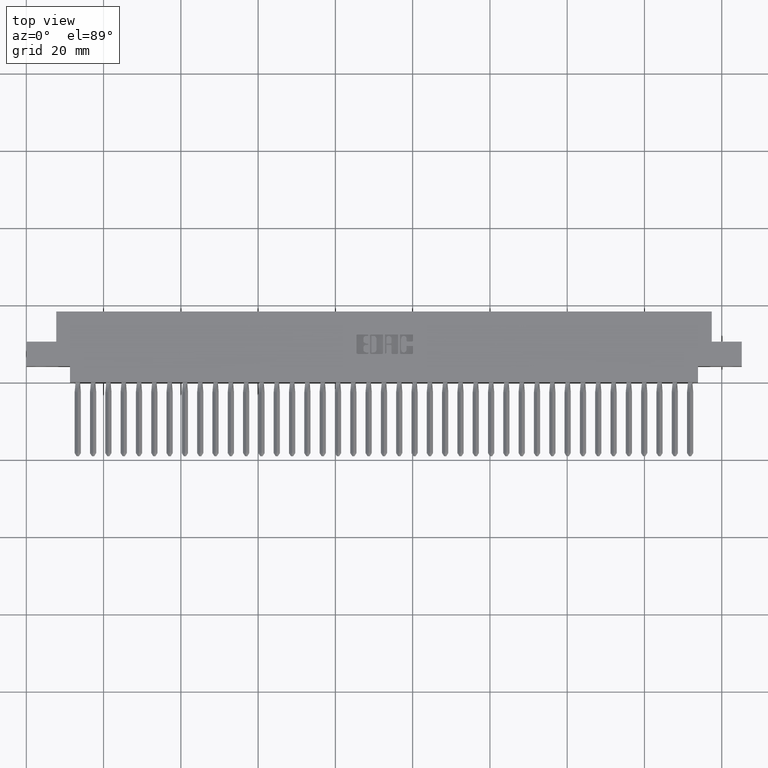
[diagram: clean part render]
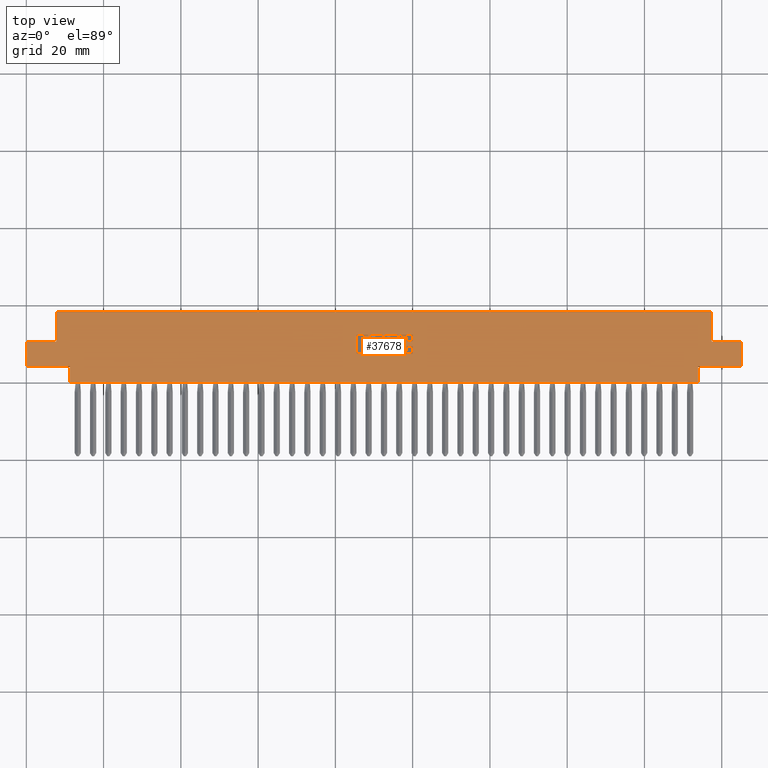
[diagram: same view with one face highlighted and labeled with its STEP entity id]
A machine part, top view. The second image highlights one B-rep face of the part: STEP entity #37678.
In plain terms, the highlighted planar face has unit normal (0, 0, -1).
Its self-contained STEP definition (entity closure, byte-faithful):
#184 = EDGE_CURVE ( 'NONE', #34541, #15889, #6531, .T. ) ;
#190 = CARTESIAN_POINT ( 'NONE',  ( 0.0000000000000000000, 0.4129999999999999200, 0.0000000000000000000 ) ) ;
#207 = ORIENTED_EDGE ( 'NONE', *, *, #20913, .F. ) ;
#329 = DIRECTION ( 'NONE',  ( -0.0000000000000000000, 0.0000000000000000000, 1.000000000000000000 ) ) ;
#342 = CARTESIAN_POINT ( 'NONE',  ( 3.816038053301265000, 0.2868432979619833200, 0.0000000000000000000 ) ) ;
#351 = CARTESIAN_POINT ( 'NONE',  ( 0.0000000000000000000, 0.3663502266127576800, 0.0000000000000000000 ) ) ;
#377 = CARTESIAN_POINT ( 'NONE',  ( 0.0000000000000000000, 0.7199999999999999700, 0.0000000000000000000 ) ) ;
#459 = CARTESIAN_POINT ( 'NONE',  ( 3.789044960240806500, 0.4733410318342011200, 0.0000000000000000000 ) ) ;
#543 = CARTESIAN_POINT ( 'NONE',  ( 3.464637060005109500, 0.3319953808994904900, 0.0000000000000000000 ) ) ;
#575 = FACE_BOUND ( 'NONE', #36734, .T. ) ;
#606 = DIRECTION ( 'NONE',  ( 1.000000000000000000, 0.0000000000000000000, 0.0000000000000000000 ) ) ;
#792 = AXIS2_PLACEMENT_3D ( 'NONE', #46364, #54588, #27063 ) ;
#867 = EDGE_CURVE ( 'NONE', #40204, #36631, #24422, .T. ) ;
#958 = DIRECTION ( 'NONE',  ( 1.000000000000000000, 0.0000000000000000000, 0.0000000000000000000 ) ) ;
#1097 = EDGE_CURVE ( 'NONE', #21560, #23966, #35841, .T. ) ;
#1276 = ORIENTED_EDGE ( 'NONE', *, *, #18230, .F. ) ;
#1279 = ORIENTED_EDGE ( 'NONE', *, *, #16593, .F. ) ;
#1280 = LINE ( 'NONE', #34866, #2672 ) ;
#1295 = CARTESIAN_POINT ( 'NONE',  ( 3.433226915352909400, 0.0000000000000000000, 0.0000000000000000000 ) ) ;
#1310 = CARTESIAN_POINT ( 'NONE',  ( 0.4450000000000002800, 0.1630000000000000100, -3.443706799202358000E-016 ) ) ;
#1350 = EDGE_CURVE ( 'NONE', #27782, #40429, #4209, .T. ) ;
#1395 = DIRECTION ( 'NONE',  ( -1.000000000000000000, 0.0000000000000000000, 0.0000000000000000000 ) ) ;
#1521 = EDGE_CURVE ( 'NONE', #45065, #56869, #18596, .T. ) ;
#1585 = LINE ( 'NONE', #38707, #18819 ) ;
#1937 = VERTEX_POINT ( 'NONE', #34109 ) ;
#2046 = EDGE_CURVE ( 'NONE', #57993, #15889, #13463, .T. ) ;
#2299 = EDGE_CURVE ( 'NONE', #36389, #54179, #42875, .T. ) ;
#2407 = DIRECTION ( 'NONE',  ( 1.000000000000000000, 0.0000000000000000000, 0.0000000000000000000 ) ) ;
#2530 = DIRECTION ( 'NONE',  ( -0.0000000000000000000, 0.0000000000000000000, 1.000000000000000000 ) ) ;
#2584 = CARTESIAN_POINT ( 'NONE',  ( 3.710028815100187700, 0.3683133606535529100, 0.0000000000000000000 ) ) ;
#2672 = VECTOR ( 'NONE', #30242, 39.37007874015748100 ) ;
#2699 = EDGE_LOOP ( 'NONE', ( #8608, #52555, #18664, #28106, #35366, #8772, #3643, #47861, #27826, #45081, #57575, #32491, #40929, #38180, #26944, #54102, #56346, #1276, #25100, #41834, #14329 ) ) ;
#2862 = LINE ( 'NONE', #19035, #14394 ) ;
#3043 = DIRECTION ( 'NONE',  ( 1.000000000000000000, 0.0000000000000000000, 0.0000000000000000000 ) ) ;
#3142 = ORIENTED_EDGE ( 'NONE', *, *, #43409, .F. ) ;
#3157 = CARTESIAN_POINT ( 'NONE',  ( 3.667330649713647100, 0.0000000000000000000, 0.0000000000000000000 ) ) ;
#3244 = CARTESIAN_POINT ( 'NONE',  ( 3.464637060005125500, 0.4380046191005199100, 0.0000000000000000000 ) ) ;
#3347 = VERTEX_POINT ( 'NONE', #32658 ) ;
#3540 = DIRECTION ( 'NONE',  ( 0.0000000000000000000, -1.000000000000000000, 0.0000000000000000000 ) ) ;
#3562 = DIRECTION ( 'NONE',  ( 1.000000000000000000, 0.0000000000000000000, 0.0000000000000000000 ) ) ;
#3566 = CARTESIAN_POINT ( 'NONE',  ( 3.478133606535351000, 0.4694147637527358300, 0.0000000000000000000 ) ) ;
#3621 = CIRCLE ( 'NONE', #24290, 0.009815670203811809700 ) ;
#3643 = ORIENTED_EDGE ( 'NONE', *, *, #30520, .F. ) ;
#3658 = DIRECTION ( 'NONE',  ( -0.0000000000000000000, 0.0000000000000000000, 1.000000000000000000 ) ) ;
#3659 = ORIENTED_EDGE ( 'NONE', *, *, #2299, .T. ) ;
#3729 = CARTESIAN_POINT ( 'NONE',  ( 3.816038053301265000, 0.2966589681657900700, 0.0000000000000000000 ) ) ;
#3816 = CARTESIAN_POINT ( 'NONE',  ( 3.931862961706166900, 0.4139562271012335900, 0.0000000000000000000 ) ) ;
#3934 = DIRECTION ( 'NONE',  ( 0.0000000000000000000, 0.0000000000000000000, -1.000000000000000000 ) ) ;
#3960 = DIRECTION ( 'NONE',  ( 1.000000000000000000, 0.0000000000000000000, 0.0000000000000000000 ) ) ;
#4149 = CARTESIAN_POINT ( 'NONE',  ( 3.667330649713647100, 0.3683133606535457000, 0.0000000000000000000 ) ) ;
#4160 = DIRECTION ( 'NONE',  ( 1.000000000000000000, 0.0000000000000000000, 0.0000000000000000000 ) ) ;
#4165 = ORIENTED_EDGE ( 'NONE', *, *, #34953, .F. ) ;
#4209 = LINE ( 'NONE', #14595, #49555 ) ;
#4273 = CARTESIAN_POINT ( 'NONE',  ( 3.710028815100187700, 0.3781290308573499500, 0.0000000000000000000 ) ) ;
#4296 = CARTESIAN_POINT ( 'NONE',  ( 3.819964321382818300, 0.0000000000000000000, 0.0000000000000000000 ) ) ;
#4310 = VECTOR ( 'NONE', #16912, 39.37007874015748100 ) ;
#4472 = CIRCLE ( 'NONE', #10519, 0.006870969142657995000 ) ;
#4549 = EDGE_CURVE ( 'NONE', #9058, #21959, #40479, .T. ) ;
#4750 = AXIS2_PLACEMENT_3D ( 'NONE', #4771, #58067, #958 ) ;
#4771 = CARTESIAN_POINT ( 'NONE',  ( 3.373842110619937900, 0.4733410318342102200, 0.0000000000000000000 ) ) ;
#4845 = CARTESIAN_POINT ( 'NONE',  ( 3.500955039759169100, 0.0000000000000000000, 0.0000000000000000000 ) ) ;
#4848 = CARTESIAN_POINT ( 'NONE',  ( 2.731847993664263200E-016, 0.1630000000000000100, 3.951581205970576600E-015 ) ) ;
#4956 = AXIS2_PLACEMENT_3D ( 'NONE', #17326, #26956, #26369 ) ;
#4999 = DIRECTION ( 'NONE',  ( -0.0000000000000000000, 0.0000000000000000000, 1.000000000000000000 ) ) ;
#5034 = DIRECTION ( 'NONE',  ( 1.000000000000000000, 0.0000000000000000000, 0.0000000000000000000 ) ) ;
#5077 = DIRECTION ( 'NONE',  ( -1.000000000000000000, -0.0000000000000000000, 9.653824462675984600E-015 ) ) ;
#5101 = CIRCLE ( 'NONE', #34636, 0.006870969142663458500 ) ;
#5257 = VERTEX_POINT ( 'NONE', #32251 ) ;
#5364 = EDGE_CURVE ( 'NONE', #23966, #56557, #36007, .T. ) ;
#5383 = DIRECTION ( 'NONE',  ( 1.000000000000000000, 0.0000000000000000000, 0.0000000000000000000 ) ) ;
#5607 = DIRECTION ( 'NONE',  ( -0.0000000000000000000, 0.0000000000000000000, 1.000000000000000000 ) ) ;
#5656 = EDGE_CURVE ( 'NONE', #47875, #32740, #3621, .T. ) ;
#5693 = EDGE_CURVE ( 'NONE', #19999, #57878, #5101, .T. ) ;
#5733 = DIRECTION ( 'NONE',  ( -0.0000000000000000000, 0.0000000000000000000, 1.000000000000000000 ) ) ;
#5885 = CARTESIAN_POINT ( 'NONE',  ( 3.433226915352927600, 0.3467188862052006900, 0.0000000000000000000 ) ) ;
#5907 = CIRCLE ( 'NONE', #29720, 0.009815670203806345400 ) ;
#5979 = VERTEX_POINT ( 'NONE', #31999 ) ;
#6126 = DIRECTION ( 'NONE',  ( 1.000000000000000000, 0.0000000000000000000, 0.0000000000000000000 ) ) ;
#6180 = CIRCLE ( 'NONE', #792, 0.009815670203805252500 ) ;
#6240 = AXIS2_PLACEMENT_3D ( 'NONE', #45362, #9002, #4160 ) ;
#6320 = VECTOR ( 'NONE', #33329, 39.37007874015748100 ) ;
#6329 = VECTOR ( 'NONE', #54827, 39.37007874015748100 ) ;
#6531 = LINE ( 'NONE', #34174, #44637 ) ;
#6733 = EDGE_CURVE ( 'NONE', #21752, #23441, #23652, .T. ) ;
#6739 = DIRECTION ( 'NONE',  ( -1.000000000000000000, 0.0000000000000000000, 0.0000000000000000000 ) ) ;
#6764 = DIRECTION ( 'NONE',  ( 1.000000000000000000, 0.0000000000000000000, 0.0000000000000000000 ) ) ;
#6766 = VERTEX_POINT ( 'NONE', #58082 ) ;
#6878 = EDGE_CURVE ( 'NONE', #27490, #57993, #30024, .T. ) ;
#6977 = DIRECTION ( 'NONE',  ( 1.000000000000000000, 0.0000000000000000000, 0.0000000000000000000 ) ) ;
#7044 = CARTESIAN_POINT ( 'NONE',  ( 3.433226915352909400, 0.4232811137948585000, 0.0000000000000000000 ) ) ;
#7239 = AXIS2_PLACEMENT_3D ( 'NONE', #3729, #12607, #6977 ) ;
#7254 = VERTEX_POINT ( 'NONE', #24044 ) ;
#7451 = DIRECTION ( 'NONE',  ( 1.000000000000000000, 0.0000000000000000000, 0.0000000000000000000 ) ) ;
#7616 = DIRECTION ( 'NONE',  ( -0.0000000000000000000, 0.0000000000000000000, 1.000000000000000000 ) ) ;
#7811 = CIRCLE ( 'NONE', #50962, 0.009815670203841313900 ) ;
#7842 = LINE ( 'NONE', #57706, #20751 ) ;
#7939 = VERTEX_POINT ( 'NONE', #3566 ) ;
#8020 = VECTOR ( 'NONE', #16630, 39.37007874015748100 ) ;
#8041 = CARTESIAN_POINT ( 'NONE',  ( 3.872478156973179000, 0.3268421540424530900, 0.0000000000000000000 ) ) ;
#8128 = EDGE_CURVE ( 'NONE', #27921, #36009, #39975, .T. ) ;
#8508 = CIRCLE ( 'NONE', #14814, 0.009815670203841313900 ) ;
#8579 = CIRCLE ( 'NONE', #15486, 0.006870969142648706400 ) ;
#8608 = ORIENTED_EDGE ( 'NONE', *, *, #1521, .T. ) ;
#8684 = CIRCLE ( 'NONE', #42504, 0.009815670203805798900 ) ;
#8734 = EDGE_CURVE ( 'NONE', #5257, #57224, #40612, .T. ) ;
#8772 = ORIENTED_EDGE ( 'NONE', *, *, #5693, .F. ) ;
#8849 = CARTESIAN_POINT ( 'NONE',  ( 6.844999999999999800, 0.1630000000000000100, 0.0000000000000000000 ) ) ;
#8908 = ORIENTED_EDGE ( 'NONE', *, *, #8128, .F. ) ;
#8976 = LINE ( 'NONE', #4845, #36990 ) ;
#8978 = VERTEX_POINT ( 'NONE', #24978 ) ;
#9002 = DIRECTION ( 'NONE',  ( -0.0000000000000000000, 0.0000000000000000000, 1.000000000000000000 ) ) ;
#9058 = VERTEX_POINT ( 'NONE', #39229 ) ;
#9207 = VERTEX_POINT ( 'NONE', #27135 ) ;
#9379 = ORIENTED_EDGE ( 'NONE', *, *, #36669, .F. ) ;
#9492 = CARTESIAN_POINT ( 'NONE',  ( 3.872478156973179000, 0.3565345564089688100, 0.0000000000000000000 ) ) ;
#9611 = ORIENTED_EDGE ( 'NONE', *, *, #184, .F. ) ;
#9613 = CIRCLE ( 'NONE', #22404, 0.006870969142648706400 ) ;
#9902 = DIRECTION ( 'NONE',  ( 1.000000000000000000, 0.0000000000000000000, 0.0000000000000000000 ) ) ;
#10111 = LINE ( 'NONE', #38695, #48194 ) ;
#10209 = ORIENTED_EDGE ( 'NONE', *, *, #45513, .T. ) ;
#10315 = CARTESIAN_POINT ( 'NONE',  ( -0.0000000000000000000, 0.4831567020380067600, 0.0000000000000000000 ) ) ;
#10384 = ORIENTED_EDGE ( 'NONE', *, *, #23600, .T. ) ;
#10519 = AXIS2_PLACEMENT_3D ( 'NONE', #28700, #5607, #33504 ) ;
#10746 = DIRECTION ( 'NONE',  ( -0.0000000000000000000, -1.000000000000000000, -0.0000000000000000000 ) ) ;
#10756 = VERTEX_POINT ( 'NONE', #30302 ) ;
#10901 = CARTESIAN_POINT ( 'NONE',  ( 3.931862961706156200, 0.3663502266127576800, 0.0000000000000000000 ) ) ;
#11077 = AXIS2_PLACEMENT_3D ( 'NONE', #21790, #12976, #25829 ) ;
#11082 = EDGE_CURVE ( 'NONE', #50565, #15315, #21685, .T. ) ;
#11187 = CARTESIAN_POINT ( 'NONE',  ( 3.485004575677973300, 0.3850000000000204900, 0.0000000000000000000 ) ) ;
#11217 = DIRECTION ( 'NONE',  ( 1.000000000000000000, 0.0000000000000000000, 0.0000000000000000000 ) ) ;
#11418 = EDGE_CURVE ( 'NONE', #25159, #29227, #26654, .T. ) ;
#11474 = CARTESIAN_POINT ( 'NONE',  ( 3.478133606535335400, 0.2937142671046481000, 0.0000000000000000000 ) ) ;
#11565 = CARTESIAN_POINT ( 'NONE',  ( 3.636411288571669100, 0.2966589681657900700, 0.0000000000000000000 ) ) ;
#11699 = LINE ( 'NONE', #25732, #44754 ) ;
#11758 = CIRCLE ( 'NONE', #48573, 0.009815670203787221800 ) ;
#11855 = EDGE_CURVE ( 'NONE', #21560, #39305, #54618, .T. ) ;
#11907 = LINE ( 'NONE', #19242, #16213 ) ;
#11979 = LINE ( 'NONE', #1295, #21290 ) ;
#12047 = DIRECTION ( 'NONE',  ( 1.000000000000000000, 0.0000000000000000000, 0.0000000000000000000 ) ) ;
#12068 = ORIENTED_EDGE ( 'NONE', *, *, #22790, .F. ) ;
#12133 = FACE_BOUND ( 'NONE', #43295, .T. ) ;
#12249 = EDGE_CURVE ( 'NONE', #36389, #31656, #12897, .T. ) ;
#12267 = CARTESIAN_POINT ( 'NONE',  ( 3.464637060005125500, 0.4694147637527358300, 0.0000000000000000000 ) ) ;
#12293 = DIRECTION ( 'NONE',  ( 1.000000000000000000, 0.0000000000000000000, 0.0000000000000000000 ) ) ;
#12607 = DIRECTION ( 'NONE',  ( -0.0000000000000000000, 0.0000000000000000000, 1.000000000000000000 ) ) ;
#12651 = CARTESIAN_POINT ( 'NONE',  ( 3.667330649713647100, 0.2937142671046481000, 0.0000000000000000000 ) ) ;
#12665 = DIRECTION ( 'NONE',  ( 0.0000000000000000000, 1.000000000000000000, -0.0000000000000000000 ) ) ;
#12683 = EDGE_CURVE ( 'NONE', #39089, #22342, #51669, .T. ) ;
#12750 = DIRECTION ( 'NONE',  ( -0.0000000000000000000, 0.0000000000000000000, 1.000000000000000000 ) ) ;
#12861 = VECTOR ( 'NONE', #5383, 39.37007874015748100 ) ;
#12868 = CARTESIAN_POINT ( 'NONE',  ( 6.844999999999999800, 0.0000000000000000000, 0.0000000000000000000 ) ) ;
#12897 = CIRCLE ( 'NONE', #48765, 0.009815670203795964800 ) ;
#12976 = DIRECTION ( 'NONE',  ( -0.0000000000000000000, 0.0000000000000000000, 1.000000000000000000 ) ) ;
#13096 = CARTESIAN_POINT ( 'NONE',  ( 3.719844485303984700, 0.2966589681657879600, 0.0000000000000000000 ) ) ;
#13152 = EDGE_CURVE ( 'NONE', #28659, #5979, #35741, .T. ) ;
#13422 = ORIENTED_EDGE ( 'NONE', *, *, #8734, .F. ) ;
#13463 = LINE ( 'NONE', #31695, #47954 ) ;
#13495 = CARTESIAN_POINT ( 'NONE',  ( 3.872478156973165700, 0.0000000000000000000, 0.0000000000000000000 ) ) ;
#13682 = CARTESIAN_POINT ( 'NONE',  ( 3.846221239177992000, 0.4431578459575297200, 0.0000000000000000000 ) ) ;
#13756 = EDGE_CURVE ( 'NONE', #39390, #56869, #11979, .T. ) ;
#13830 = DIRECTION ( 'NONE',  ( -0.0000000000000000000, 0.0000000000000000000, 1.000000000000000000 ) ) ;
#13839 = CARTESIAN_POINT ( 'NONE',  ( -0.0000000000000000000, 0.2868432979619833200, 0.0000000000000000000 ) ) ;
#14060 = VERTEX_POINT ( 'NONE', #10901 ) ;
#14155 = VERTEX_POINT ( 'NONE', #3816 ) ;
#14200 = AXIS2_PLACEMENT_3D ( 'NONE', #11474, #15480, #33939 ) ;
#14329 = ORIENTED_EDGE ( 'NONE', *, *, #24579, .F. ) ;
#14394 = VECTOR ( 'NONE', #19644, 39.37007874015748100 ) ;
#14595 = CARTESIAN_POINT ( 'NONE',  ( -0.0000000000000000000, 0.2868432979619833200, 0.0000000000000000000 ) ) ;
#14631 = ORIENTED_EDGE ( 'NONE', *, *, #55944, .F. ) ;
#14814 = AXIS2_PLACEMENT_3D ( 'NONE', #17093, #22101, #12293 ) ;
#15315 = VERTEX_POINT ( 'NONE', #52717 ) ;
#15385 = LINE ( 'NONE', #48221, #49911 ) ;
#15394 = DIRECTION ( 'NONE',  ( 0.0000000000000000000, 1.000000000000000000, -0.0000000000000000000 ) ) ;
#15480 = DIRECTION ( 'NONE',  ( -0.0000000000000000000, 0.0000000000000000000, 1.000000000000000000 ) ) ;
#15486 = AXIS2_PLACEMENT_3D ( 'NONE', #48062, #52490, #20132 ) ;
#15533 = VERTEX_POINT ( 'NONE', #4848 ) ;
#15567 = VECTOR ( 'NONE', #42634, 39.37007874015748100 ) ;
#15766 = EDGE_CURVE ( 'NONE', #36009, #47557, #15385, .T. ) ;
#15889 = VERTEX_POINT ( 'NONE', #12868 ) ;
#16064 = DIRECTION ( 'NONE',  ( 1.000000000000000000, 0.0000000000000000000, 0.0000000000000000000 ) ) ;
#16193 = CARTESIAN_POINT ( 'NONE',  ( 3.478133606535309700, 0.3850000000000204900, 0.0000000000000000000 ) ) ;
#16213 = VECTOR ( 'NONE', #32878, 39.37007874015748100 ) ;
#16293 = CARTESIAN_POINT ( 'NONE',  ( 0.0000000000000000000, 0.4831567020380328500, 0.0000000000000000000 ) ) ;
#16450 = EDGE_CURVE ( 'NONE', #14155, #8978, #6180, .T. ) ;
#16593 = EDGE_CURVE ( 'NONE', #6766, #9207, #11907, .T. ) ;
#16606 = CARTESIAN_POINT ( 'NONE',  ( 3.626595618367861800, 0.2868432979619833200, 0.0000000000000000000 ) ) ;
#16630 = DIRECTION ( 'NONE',  ( 1.000000000000000000, 0.0000000000000000000, 0.0000000000000000000 ) ) ;
#16912 = DIRECTION ( 'NONE',  ( 0.0000000000000000000, 1.000000000000000000, -0.0000000000000000000 ) ) ;
#17093 = CARTESIAN_POINT ( 'NONE',  ( 3.816038053301299600, 0.4733410318342102200, 0.0000000000000000000 ) ) ;
#17287 = CIRCLE ( 'NONE', #57050, 0.03141014465217440600 ) ;
#17326 = CARTESIAN_POINT ( 'NONE',  ( 3.478133606535309700, 0.3850000000000204900, 0.0000000000000000000 ) ) ;
#17388 = ORIENTED_EDGE ( 'NONE', *, *, #45162, .F. ) ;
#17418 = CARTESIAN_POINT ( 'NONE',  ( -0.0000000000000000000, 0.3781290308573569400, 0.0000000000000000000 ) ) ;
#17688 = ORIENTED_EDGE ( 'NONE', *, *, #44374, .F. ) ;
#17769 = EDGE_CURVE ( 'NONE', #10756, #18890, #56329, .T. ) ;
#18114 = DIRECTION ( 'NONE',  ( 0.0000000000000000000, -1.000000000000000000, 0.0000000000000000000 ) ) ;
#18156 = CARTESIAN_POINT ( 'NONE',  ( 3.478133606535335400, 0.2937142671046481000, 0.0000000000000000000 ) ) ;
#18190 = CARTESIAN_POINT ( 'NONE',  ( 0.3050000000000000500, 0.7199999999999999700, 0.0000000000000000000 ) ) ;
#18229 = DIRECTION ( 'NONE',  ( -1.000000000000000000, 0.0000000000000000000, -0.0000000000000000000 ) ) ;
#18230 = EDGE_CURVE ( 'NONE', #3347, #9058, #48339, .T. ) ;
#18339 = EDGE_CURVE ( 'NONE', #32740, #14155, #11699, .T. ) ;
#18496 = EDGE_CURVE ( 'NONE', #39244, #50565, #1585, .T. ) ;
#18540 = VECTOR ( 'NONE', #606, 39.37007874015748100 ) ;
#18544 = ORIENTED_EDGE ( 'NONE', *, *, #18496, .F. ) ;
#18596 = CIRCLE ( 'NONE', #21199, 0.03141014465221592800 ) ;
#18664 = ORIENTED_EDGE ( 'NONE', *, *, #44166, .T. ) ;
#18682 = EDGE_CURVE ( 'NONE', #40429, #23753, #5907, .T. ) ;
#18702 = DIRECTION ( 'NONE',  ( -0.0000000000000000000, 0.0000000000000000000, 1.000000000000000000 ) ) ;
#18819 = VECTOR ( 'NONE', #6739, 39.37007874015748100 ) ;
#18890 = VERTEX_POINT ( 'NONE', #5885 ) ;
#19035 = CARTESIAN_POINT ( 'NONE',  ( 0.0000000000000000000, 0.4831567020380511700, 0.0000000000000000000 ) ) ;
#19096 = CARTESIAN_POINT ( 'NONE',  ( 3.364026440416115100, 0.4733410318342102200, 0.0000000000000000000 ) ) ;
#19205 = VECTOR ( 'NONE', #3540, 39.37007874015748100 ) ;
#19242 = CARTESIAN_POINT ( 'NONE',  ( 3.806222383097458200, 0.0000000000000000000, 0.0000000000000000000 ) ) ;
#19272 = DIRECTION ( 'NONE',  ( -0.0000000000000000000, 0.0000000000000000000, 1.000000000000000000 ) ) ;
#19540 = VECTOR ( 'NONE', #10746, 39.37007874015748100 ) ;
#19617 = ORIENTED_EDGE ( 'NONE', *, *, #15766, .F. ) ;
#19644 = DIRECTION ( 'NONE',  ( -1.000000000000000000, 0.0000000000000000000, 0.0000000000000000000 ) ) ;
#19680 = AXIS2_PLACEMENT_3D ( 'NONE', #39740, #53413, #48794 ) ;
#19898 = CARTESIAN_POINT ( 'NONE',  ( 3.478133606415414500, 0.3005852362473103200, 0.0000000000000000000 ) ) ;
#19999 = VERTEX_POINT ( 'NONE', #37370 ) ;
#20046 = CARTESIAN_POINT ( 'NONE',  ( 3.882293827176977800, 0.4237718973050453300, 0.0000000000000000000 ) ) ;
#20132 = DIRECTION ( 'NONE',  ( 1.000000000000000000, 0.0000000000000000000, 0.0000000000000000000 ) ) ;
#20362 = CARTESIAN_POINT ( 'NONE',  ( 3.626595618367828100, 0.4733410318342101100, 0.0000000000000000000 ) ) ;
#20417 = DIRECTION ( 'NONE',  ( -1.000000000000000000, 0.0000000000000000000, 0.0000000000000000000 ) ) ;
#20548 = DIRECTION ( 'NONE',  ( -0.0000000000000000000, 0.0000000000000000000, 1.000000000000000000 ) ) ;
#20577 = EDGE_CURVE ( 'NONE', #42239, #39244, #7811, .T. ) ;
#20664 = ORIENTED_EDGE ( 'NONE', *, *, #1350, .F. ) ;
#20697 = ORIENTED_EDGE ( 'NONE', *, *, #47452, .T. ) ;
#20751 = VECTOR ( 'NONE', #44392, 39.37007874015748100 ) ;
#20913 = EDGE_CURVE ( 'NONE', #32905, #6766, #8508, .T. ) ;
#21124 = EDGE_CURVE ( 'NONE', #35846, #39305, #53018, .T. ) ;
#21179 = ORIENTED_EDGE ( 'NONE', *, *, #18339, .F. ) ;
#21199 = AXIS2_PLACEMENT_3D ( 'NONE', #3244, #39241, #3043 ) ;
#21290 = VECTOR ( 'NONE', #47509, 39.37007874015748100 ) ;
#21305 = DIRECTION ( 'NONE',  ( 0.0000000000000000000, 1.000000000000000000, -0.0000000000000000000 ) ) ;
#21326 = DIRECTION ( 'NONE',  ( -0.0000000000000000000, 1.000000000000000000, -0.0000000000000000000 ) ) ;
#21434 = FACE_BOUND ( 'NONE', #22991, .T. ) ;
#21443 = VECTOR ( 'NONE', #36290, 39.37007874015748100 ) ;
#21560 = VERTEX_POINT ( 'NONE', #54197 ) ;
#21635 = LINE ( 'NONE', #44798, #57667 ) ;
#21685 = CIRCLE ( 'NONE', #42968, 0.009815670203840767500 ) ;
#21752 = VERTEX_POINT ( 'NONE', #42265 ) ;
#21790 = CARTESIAN_POINT ( 'NONE',  ( 3.626595618367861800, 0.2966589681657900700, 0.0000000000000000000 ) ) ;
#21824 = AXIS2_PLACEMENT_3D ( 'NONE', #18156, #22957, #23161 ) ;
#21857 = DIRECTION ( 'NONE',  ( -0.0000000000000000000, 0.0000000000000000000, 1.000000000000000000 ) ) ;
#21941 = ORIENTED_EDGE ( 'NONE', *, *, #16450, .F. ) ;
#21959 = VERTEX_POINT ( 'NONE', #19096 ) ;
#22078 = LINE ( 'NONE', #10315, #18540 ) ;
#22101 = DIRECTION ( 'NONE',  ( -0.0000000000000000000, 0.0000000000000000000, 1.000000000000000000 ) ) ;
#22143 = VECTOR ( 'NONE', #21305, 39.37007874015748100 ) ;
#22182 = DIRECTION ( 'NONE',  ( -0.0000000000000000000, 0.0000000000000000000, 1.000000000000000000 ) ) ;
#22276 = CARTESIAN_POINT ( 'NONE',  ( 3.510770709962975900, 0.2966589681657900700, 0.0000000000000000000 ) ) ;
#22342 = VERTEX_POINT ( 'NONE', #56007 ) ;
#22404 = AXIS2_PLACEMENT_3D ( 'NONE', #39950, #21857, #3562 ) ;
#22570 = CARTESIAN_POINT ( 'NONE',  ( 3.373842110619918300, 0.2868432979619851000, 0.0000000000000000000 ) ) ;
#22671 = CARTESIAN_POINT ( 'NONE',  ( 3.636411288571669100, 0.0000000000000000000, 0.0000000000000000000 ) ) ;
#22790 = EDGE_CURVE ( 'NONE', #56557, #34541, #58435, .T. ) ;
#22796 = ORIENTED_EDGE ( 'NONE', *, *, #30562, .T. ) ;
#22957 = DIRECTION ( 'NONE',  ( -0.0000000000000000000, 0.0000000000000000000, 1.000000000000000000 ) ) ;
#22991 = EDGE_LOOP ( 'NONE', ( #41409, #47680, #22796, #49525, #3659, #14631, #52990, #24975, #10384, #20697, #24339, #3142, #32800, #42108 ) ) ;
#23077 = EDGE_LOOP ( 'NONE', ( #38282, #27774, #54148, #9611, #12068, #25772, #50127, #31677, #33865, #17388, #9379, #27876 ) ) ;
#23161 = DIRECTION ( 'NONE',  ( 1.000000000000000000, 0.0000000000000000000, 0.0000000000000000000 ) ) ;
#23193 = CARTESIAN_POINT ( 'NONE',  ( 7.290000000000000000, 0.4129999999999999200, 0.0000000000000000000 ) ) ;
#23357 = EDGE_CURVE ( 'NONE', #23753, #33457, #45377, .T. ) ;
#23441 = VERTEX_POINT ( 'NONE', #4273 ) ;
#23590 = CIRCLE ( 'NONE', #19680, 0.009815670203840221000 ) ;
#23600 = EDGE_CURVE ( 'NONE', #23441, #47597, #26027, .T. ) ;
#23652 = CIRCLE ( 'NONE', #23920, 0.009815670203797057700 ) ;
#23753 = VERTEX_POINT ( 'NONE', #26727 ) ;
#23893 = CARTESIAN_POINT ( 'NONE',  ( 7.290000000000000000, 0.1630000000000000100, 0.0000000000000000000 ) ) ;
#23920 = AXIS2_PLACEMENT_3D ( 'NONE', #2584, #7616, #12047 ) ;
#23966 = VERTEX_POINT ( 'NONE', #27668 ) ;
#24044 = CARTESIAN_POINT ( 'NONE',  ( 0.3050000000000000500, 0.4129999999999999200, 0.0000000000000000000 ) ) ;
#24248 = EDGE_CURVE ( 'NONE', #9207, #27782, #54682, .T. ) ;
#24290 = AXIS2_PLACEMENT_3D ( 'NONE', #20046, #52198, #6764 ) ;
#24339 = ORIENTED_EDGE ( 'NONE', *, *, #40394, .T. ) ;
#24361 = FACE_OUTER_BOUND ( 'NONE', #23077, .T. ) ;
#24422 = LINE ( 'NONE', #30419, #40939 ) ;
#24471 = DIRECTION ( 'NONE',  ( 1.000000000000000000, 0.0000000000000000000, 0.0000000000000000000 ) ) ;
#24579 = EDGE_CURVE ( 'NONE', #45065, #7939, #10111, .T. ) ;
#24610 = LINE ( 'NONE', #27950, #56975 ) ;
#24653 = EDGE_CURVE ( 'NONE', #8978, #56809, #56856, .T. ) ;
#24921 = CARTESIAN_POINT ( 'NONE',  ( 3.931862961706153100, 0.3565345564089705800, 0.0000000000000000000 ) ) ;
#24967 = DIRECTION ( 'NONE',  ( 1.000000000000000000, 0.0000000000000000000, 0.0000000000000000000 ) ) ;
#24975 = ORIENTED_EDGE ( 'NONE', *, *, #6733, .T. ) ;
#24978 = CARTESIAN_POINT ( 'NONE',  ( 3.941678631909971900, 0.4237718973050387800, 0.0000000000000000000 ) ) ;
#25036 = FACE_BOUND ( 'NONE', #2699, .T. ) ;
#25100 = ORIENTED_EDGE ( 'NONE', *, *, #55820, .F. ) ;
#25149 = DIRECTION ( 'NONE',  ( -1.000000000000000000, -3.530861605407645300E-014, 0.0000000000000000000 ) ) ;
#25159 = VERTEX_POINT ( 'NONE', #16606 ) ;
#25725 = CARTESIAN_POINT ( 'NONE',  ( 3.677146319917449900, 0.3683133606535457000, 0.0000000000000000000 ) ) ;
#25732 = CARTESIAN_POINT ( 'NONE',  ( -0.0000000000000000000, 0.4139562271012337500, 0.0000000000000000000 ) ) ;
#25772 = ORIENTED_EDGE ( 'NONE', *, *, #5364, .F. ) ;
#25829 = DIRECTION ( 'NONE',  ( 1.000000000000000000, 0.0000000000000000000, 0.0000000000000000000 ) ) ;
#25875 = DIRECTION ( 'NONE',  ( 0.0000000000000000000, -1.000000000000000000, 0.0000000000000000000 ) ) ;
#25883 = CARTESIAN_POINT ( 'NONE',  ( 3.433226915352927600, 0.3319953808994904900, 0.0000000000000000000 ) ) ;
#26027 = LINE ( 'NONE', #56740, #52563 ) ;
#26237 = AXIS2_PLACEMENT_3D ( 'NONE', #49515, #3658, #35795 ) ;
#26337 = EDGE_CURVE ( 'NONE', #38114, #21752, #36376, .T. ) ;
#26369 = DIRECTION ( 'NONE',  ( 1.000000000000000000, 0.0000000000000000000, 0.0000000000000000000 ) ) ;
#26653 = ORIENTED_EDGE ( 'NONE', *, *, #18682, .F. ) ;
#26654 = CIRCLE ( 'NONE', #11077, 0.009815670203806891800 ) ;
#26727 = CARTESIAN_POINT ( 'NONE',  ( 3.941678631909940400, 0.2966589681657831300, 0.0000000000000000000 ) ) ;
#26896 = CARTESIAN_POINT ( 'NONE',  ( 3.677146319917449900, 0.3781290308573487800, 0.0000000000000000000 ) ) ;
#26944 = ORIENTED_EDGE ( 'NONE', *, *, #47788, .F. ) ;
#26956 = DIRECTION ( 'NONE',  ( -0.0000000000000000000, 0.0000000000000000000, 1.000000000000000000 ) ) ;
#27063 = DIRECTION ( 'NONE',  ( 1.000000000000000000, 0.0000000000000000000, 0.0000000000000000000 ) ) ;
#27135 = CARTESIAN_POINT ( 'NONE',  ( 3.806222383097458200, 0.2966589681657900700, 0.0000000000000000000 ) ) ;
#27141 = ORIENTED_EDGE ( 'NONE', *, *, #49573, .F. ) ;
#27417 = DIRECTION ( 'NONE',  ( 1.000000000000000000, -0.0000000000000000000, 2.743409591860422600E-015 ) ) ;
#27490 = VERTEX_POINT ( 'NONE', #1310 ) ;
#27643 = CARTESIAN_POINT ( 'NONE',  ( 3.729660155507785700, 0.2868432979619847700, 0.0000000000000000000 ) ) ;
#27668 = CARTESIAN_POINT ( 'NONE',  ( 7.290000000000000000, 0.4129999999999999200, 0.0000000000000000000 ) ) ;
#27774 = ORIENTED_EDGE ( 'NONE', *, *, #6878, .T. ) ;
#27776 = CARTESIAN_POINT ( 'NONE',  ( 3.663404381632127600, 0.4733410318342102200, 0.0000000000000000000 ) ) ;
#27782 = VERTEX_POINT ( 'NONE', #342 ) ;
#27826 = ORIENTED_EDGE ( 'NONE', *, *, #31325, .F. ) ;
#27876 = ORIENTED_EDGE ( 'NONE', *, *, #34640, .T. ) ;
#27921 = VERTEX_POINT ( 'NONE', #55845 ) ;
#27950 = CARTESIAN_POINT ( 'NONE',  ( 2.731847993664263200E-016, 0.1630000000000000100, 3.951581205970576600E-015 ) ) ;
#28048 = CIRCLE ( 'NONE', #40451, 0.009815670203806891800 ) ;
#28091 = EDGE_CURVE ( 'NONE', #51224, #36631, #45169, .T. ) ;
#28106 = ORIENTED_EDGE ( 'NONE', *, *, #49951, .F. ) ;
#28198 = ORIENTED_EDGE ( 'NONE', *, *, #55739, .F. ) ;
#28659 = VERTEX_POINT ( 'NONE', #51452 ) ;
#28689 = DIRECTION ( 'NONE',  ( 1.000000000000000000, 0.0000000000000000000, 0.0000000000000000000 ) ) ;
#28700 = CARTESIAN_POINT ( 'NONE',  ( 3.660459680570987000, 0.2937142671046481000, 0.0000000000000000000 ) ) ;
#28746 = ORIENTED_EDGE ( 'NONE', *, *, #53444, .F. ) ;
#28766 = CARTESIAN_POINT ( 'NONE',  ( 3.872478156973165700, 0.4431578454992600700, 0.0000000000000000000 ) ) ;
#29012 = LINE ( 'NONE', #37701, #32540 ) ;
#29227 = VERTEX_POINT ( 'NONE', #11565 ) ;
#29337 = LINE ( 'NONE', #22671, #6329 ) ;
#29406 = VECTOR ( 'NONE', #9902, 39.37007874015748100 ) ;
#29493 = ORIENTED_EDGE ( 'NONE', *, *, #5656, .F. ) ;
#29660 = AXIS2_PLACEMENT_3D ( 'NONE', #543, #329, #55013 ) ;
#29720 = AXIS2_PLACEMENT_3D ( 'NONE', #59131, #12750, #45472 ) ;
#30019 = DIRECTION ( 'NONE',  ( 1.000000000000000000, 0.0000000000000000000, 0.0000000000000000000 ) ) ;
#30024 = LINE ( 'NONE', #58841, #21443 ) ;
#30057 = LINE ( 'NONE', #190, #29406 ) ;
#30242 = DIRECTION ( 'NONE',  ( -1.000000000000000000, 0.0000000000000000000, 0.0000000000000000000 ) ) ;
#30302 = CARTESIAN_POINT ( 'NONE',  ( 3.464637060005083800, 0.3781290308573569400, 0.0000000000000000000 ) ) ;
#30419 = CARTESIAN_POINT ( 'NONE',  ( -3.574451384757906900E-014, 0.3005852362468967600, 0.0000000000000000000 ) ) ;
#30520 = EDGE_CURVE ( 'NONE', #10756, #19999, #56948, .T. ) ;
#30562 = EDGE_CURVE ( 'NONE', #34823, #31656, #35306, .T. ) ;
#30602 = VECTOR ( 'NONE', #20417, 39.37007874015748100 ) ;
#30631 = DIRECTION ( 'NONE',  ( 1.000000000000000000, 0.0000000000000000000, 0.0000000000000000000 ) ) ;
#30660 = VERTEX_POINT ( 'NONE', #40714 ) ;
#30856 = CARTESIAN_POINT ( 'NONE',  ( 3.789044960240806500, 0.0000000000000000000, 0.0000000000000000000 ) ) ;
#31074 = CARTESIAN_POINT ( 'NONE',  ( 3.941678631909971900, 0.4733410318341949600, 0.0000000000000000000 ) ) ;
#31186 = ORIENTED_EDGE ( 'NONE', *, *, #51088, .F. ) ;
#31325 = EDGE_CURVE ( 'NONE', #51224, #18890, #53224, .T. ) ;
#31462 = EDGE_CURVE ( 'NONE', #1937, #32905, #2862, .T. ) ;
#31656 = VERTEX_POINT ( 'NONE', #52766 ) ;
#31677 = ORIENTED_EDGE ( 'NONE', *, *, #11855, .T. ) ;
#31695 = CARTESIAN_POINT ( 'NONE',  ( 0.0000000000000000000, 0.0000000000000000000, 0.0000000000000000000 ) ) ;
#31855 = CIRCLE ( 'NONE', #6240, 0.009815670203803066700 ) ;
#31999 = CARTESIAN_POINT ( 'NONE',  ( 3.485004575677997700, 0.2937142671046481000, 0.0000000000000000000 ) ) ;
#32028 = AXIS2_PLACEMENT_3D ( 'NONE', #25725, #39379, #2407 ) ;
#32072 = DIRECTION ( 'NONE',  ( 1.000000000000000000, 0.0000000000000000000, 0.0000000000000000000 ) ) ;
#32122 = CARTESIAN_POINT ( 'NONE',  ( 3.364026440416115100, 0.0000000000000000000, 0.0000000000000000000 ) ) ;
#32251 = CARTESIAN_POINT ( 'NONE',  ( 3.819964321382818300, 0.3268421540424530900, 0.0000000000000000000 ) ) ;
#32387 = DIRECTION ( 'NONE',  ( -0.0000000000000000000, 0.0000000000000000000, 1.000000000000000000 ) ) ;
#32491 = ORIENTED_EDGE ( 'NONE', *, *, #41721, .F. ) ;
#32540 = VECTOR ( 'NONE', #47756, 39.37007874015748100 ) ;
#32600 = DIRECTION ( 'NONE',  ( 0.0000000000000000000, 1.000000000000000000, -0.0000000000000000000 ) ) ;
#32658 = CARTESIAN_POINT ( 'NONE',  ( 3.478133606535351000, 0.4831567020380328500, 0.0000000000000000000 ) ) ;
#32740 = VERTEX_POINT ( 'NONE', #42742 ) ;
#32800 = ORIENTED_EDGE ( 'NONE', *, *, #12683, .T. ) ;
#32810 = DIRECTION ( 'NONE',  ( 1.000000000000000000, 0.0000000000000000000, 0.0000000000000000000 ) ) ;
#32878 = DIRECTION ( 'NONE',  ( 0.0000000000000000000, -1.000000000000000000, 0.0000000000000000000 ) ) ;
#32905 = VERTEX_POINT ( 'NONE', #43917 ) ;
#32947 = CARTESIAN_POINT ( 'NONE',  ( 3.626595618367896000, 0.4831567020380511700, 0.0000000000000000000 ) ) ;
#32989 = VERTEX_POINT ( 'NONE', #22570 ) ;
#33099 = ORIENTED_EDGE ( 'NONE', *, *, #23357, .F. ) ;
#33329 = DIRECTION ( 'NONE',  ( 1.000000000000000000, 0.0000000000000000000, 0.0000000000000000000 ) ) ;
#33457 = VERTEX_POINT ( 'NONE', #40604 ) ;
#33502 = CARTESIAN_POINT ( 'NONE',  ( 3.464637060005083800, 0.3918709691426839900, 0.0000000000000000000 ) ) ;
#33504 = DIRECTION ( 'NONE',  ( 1.000000000000000000, 0.0000000000000000000, 0.0000000000000000000 ) ) ;
#33662 = LINE ( 'NONE', #32122, #48845 ) ;
#33808 = VECTOR ( 'NONE', #21326, 39.37007874015748100 ) ;
#33865 = ORIENTED_EDGE ( 'NONE', *, *, #21124, .F. ) ;
#33939 = DIRECTION ( 'NONE',  ( 1.000000000000000000, 0.0000000000000000000, 0.0000000000000000000 ) ) ;
#34109 = CARTESIAN_POINT ( 'NONE',  ( 3.931862961706168200, 0.4831567020380511700, 0.0000000000000000000 ) ) ;
#34174 = CARTESIAN_POINT ( 'NONE',  ( 6.844999999999999800, 0.1630000000000000100, 0.0000000000000000000 ) ) ;
#34279 = CARTESIAN_POINT ( 'NONE',  ( 3.819964321382818300, 0.4431578459575297200, 0.0000000000000000000 ) ) ;
#34541 = VERTEX_POINT ( 'NONE', #8849 ) ;
#34636 = AXIS2_PLACEMENT_3D ( 'NONE', #16193, #48359, #30019 ) ;
#34640 = EDGE_CURVE ( 'NONE', #47240, #15533, #29012, .T. ) ;
#34823 = VERTEX_POINT ( 'NONE', #459 ) ;
#34866 = CARTESIAN_POINT ( 'NONE',  ( 0.0000000000000000000, 0.3918709691426839900, 0.0000000000000000000 ) ) ;
#34953 = EDGE_CURVE ( 'NONE', #14060, #27921, #39034, .T. ) ;
#35048 = DIRECTION ( 'NONE',  ( -1.000000000000000000, -1.189163988687022500E-013, 0.0000000000000000000 ) ) ;
#35306 = LINE ( 'NONE', #30856, #41089 ) ;
#35366 = ORIENTED_EDGE ( 'NONE', *, *, #35879, .F. ) ;
#35474 = CIRCLE ( 'NONE', #38483, 0.009815670203795418300 ) ;
#35640 = DIRECTION ( 'NONE',  ( 1.000000000000000000, 0.0000000000000000000, 0.0000000000000000000 ) ) ;
#35715 = DIRECTION ( 'NONE',  ( 1.000000000000000000, 7.203446383881635600E-015, 0.0000000000000000000 ) ) ;
#35741 = CIRCLE ( 'NONE', #14200, 0.006870969142662365600 ) ;
#35795 = DIRECTION ( 'NONE',  ( 1.000000000000000000, 0.0000000000000000000, 0.0000000000000000000 ) ) ;
#35841 = LINE ( 'NONE', #23193, #46702 ) ;
#35846 = VERTEX_POINT ( 'NONE', #18190 ) ;
#35879 = EDGE_CURVE ( 'NONE', #57878, #45743, #41037, .T. ) ;
#36007 = LINE ( 'NONE', #47138, #19540 ) ;
#36009 = VERTEX_POINT ( 'NONE', #9492 ) ;
#36060 = VECTOR ( 'NONE', #53056, 39.37007874015748100 ) ;
#36113 = DIRECTION ( 'NONE',  ( 1.000000000000000000, 0.0000000000000000000, 0.0000000000000000000 ) ) ;
#36290 = DIRECTION ( 'NONE',  ( -0.0000000000000000000, -1.000000000000000000, -0.0000000000000000000 ) ) ;
#36376 = LINE ( 'NONE', #38423, #15567 ) ;
#36389 = VERTEX_POINT ( 'NONE', #42603 ) ;
#36631 = VERTEX_POINT ( 'NONE', #51284 ) ;
#36669 = EDGE_CURVE ( 'NONE', #47240, #7254, #30057, .T. ) ;
#36734 = EDGE_LOOP ( 'NONE', ( #21941, #21179, #29493, #28746, #10209, #13422, #46387, #19617, #8908, #4165, #28198, #33099, #26653, #20664, #46308, #1279, #207, #43563, #53847, #45609 ) ) ;
#36964 = DIRECTION ( 'NONE',  ( 0.0000000000000000000, -1.000000000000000000, 0.0000000000000000000 ) ) ;
#36972 = EDGE_CURVE ( 'NONE', #21959, #51739, #33662, .T. ) ;
#36990 = VECTOR ( 'NONE', #36964, 39.37007874015748100 ) ;
#37370 = CARTESIAN_POINT ( 'NONE',  ( 3.478133606415388700, 0.3781290308573569400, 0.0000000000000000000 ) ) ;
#37383 = AXIS2_PLACEMENT_3D ( 'NONE', #27776, #32387, #32810 ) ;
#37596 = EDGE_CURVE ( 'NONE', #56809, #1937, #23590, .T. ) ;
#37678 = ADVANCED_FACE ( 'NONE', ( #575, #25036, #24361, #12133, #21434 ), #44961, .F. ) ;
#37701 = CARTESIAN_POINT ( 'NONE',  ( 0.0000000000000000000, 0.7199999999999999700, 0.0000000000000000000 ) ) ;
#37759 = CARTESIAN_POINT ( 'NONE',  ( 3.636411288571669100, 0.4733410318342102200, 0.0000000000000000000 ) ) ;
#38114 = VERTEX_POINT ( 'NONE', #13096 ) ;
#38180 = ORIENTED_EDGE ( 'NONE', *, *, #47653, .F. ) ;
#38282 = ORIENTED_EDGE ( 'NONE', *, *, #46782, .F. ) ;
#38423 = CARTESIAN_POINT ( 'NONE',  ( 3.719844485303984700, 0.0000000000000000000, 0.0000000000000000000 ) ) ;
#38483 = AXIS2_PLACEMENT_3D ( 'NONE', #46358, #56015, #55809 ) ;
#38507 = CIRCLE ( 'NONE', #37383, 0.009815670203796511200 ) ;
#38695 = CARTESIAN_POINT ( 'NONE',  ( -0.0000000000000000000, 0.4694147637527358300, 0.0000000000000000000 ) ) ;
#38707 = CARTESIAN_POINT ( 'NONE',  ( 0.0000000000000000000, 0.4831567020380511700, 0.0000000000000000000 ) ) ;
#38892 = CARTESIAN_POINT ( 'NONE',  ( 0.0000000000000000000, 0.2868432979619847700, 0.0000000000000000000 ) ) ;
#39034 = LINE ( 'NONE', #351, #41141 ) ;
#39089 = VERTEX_POINT ( 'NONE', #55070 ) ;
#39229 = CARTESIAN_POINT ( 'NONE',  ( 3.373842110619937900, 0.4831567020380328500, 0.0000000000000000000 ) ) ;
#39231 = CARTESIAN_POINT ( 'NONE',  ( 6.985000000000000300, 0.4129999999999999200, -8.367399255174291300E-016 ) ) ;
#39241 = DIRECTION ( 'NONE',  ( -0.0000000000000000000, 0.0000000000000000000, 1.000000000000000000 ) ) ;
#39244 = VERTEX_POINT ( 'NONE', #32947 ) ;
#39299 = CARTESIAN_POINT ( 'NONE',  ( 3.500955039759169100, 0.2966589681657900700, 0.0000000000000000000 ) ) ;
#39305 = VERTEX_POINT ( 'NONE', #39371 ) ;
#39371 = CARTESIAN_POINT ( 'NONE',  ( 6.985000000000000300, 0.7199999999999999700, -8.367399255174291300E-016 ) ) ;
#39379 = DIRECTION ( 'NONE',  ( -0.0000000000000000000, 0.0000000000000000000, 1.000000000000000000 ) ) ;
#39390 = VERTEX_POINT ( 'NONE', #7044 ) ;
#39403 = AXIS2_PLACEMENT_3D ( 'NONE', #48749, #2530, #30631 ) ;
#39740 = CARTESIAN_POINT ( 'NONE',  ( 3.931862961706131800, 0.4733410318342110600, 0.0000000000000000000 ) ) ;
#39950 = CARTESIAN_POINT ( 'NONE',  ( 3.478133606535351000, 0.4762857328953863900, 0.0000000000000000000 ) ) ;
#39975 = CIRCLE ( 'NONE', #53573, 0.009815670203787768200 ) ;
#40169 = LINE ( 'NONE', #13839, #12861 ) ;
#40204 = VERTEX_POINT ( 'NONE', #19898 ) ;
#40394 = EDGE_CURVE ( 'NONE', #54137, #44478, #42199, .T. ) ;
#40407 = CARTESIAN_POINT ( 'NONE',  ( 3.433226915352927600, 0.0000000000000000000, 0.0000000000000000000 ) ) ;
#40429 = VERTEX_POINT ( 'NONE', #40726 ) ;
#40451 = AXIS2_PLACEMENT_3D ( 'NONE', #22276, #54450, #36113 ) ;
#40479 = CIRCLE ( 'NONE', #4750, 0.009815670203822736800 ) ;
#40604 = CARTESIAN_POINT ( 'NONE',  ( 3.941678631909940400, 0.3565345564089705800, 0.0000000000000000000 ) ) ;
#40612 = LINE ( 'NONE', #4296, #43505 ) ;
#40619 = DIRECTION ( 'NONE',  ( 0.0000000000000000000, -1.000000000000000000, 0.0000000000000000000 ) ) ;
#40714 = CARTESIAN_POINT ( 'NONE',  ( 3.485004575677999900, 0.4762857328953863900, 0.0000000000000000000 ) ) ;
#40726 = CARTESIAN_POINT ( 'NONE',  ( 3.931862961706134000, 0.2868432979619833200, 0.0000000000000000000 ) ) ;
#40929 = ORIENTED_EDGE ( 'NONE', *, *, #13152, .F. ) ;
#40939 = VECTOR ( 'NONE', #35048, 39.37007874015748100 ) ;
#40942 = CARTESIAN_POINT ( 'NONE',  ( 3.882293827176966700, 0.3565345564089696900, 0.0000000000000000000 ) ) ;
#41037 = CIRCLE ( 'NONE', #4956, 0.006870969142663458500 ) ;
#41048 = VECTOR ( 'NONE', #12665, 39.37007874015748100 ) ;
#41089 = VECTOR ( 'NONE', #25875, 39.37007874015748100 ) ;
#41141 = VECTOR ( 'NONE', #50031, 39.37007874015748100 ) ;
#41409 = ORIENTED_EDGE ( 'NONE', *, *, #53562, .T. ) ;
#41721 = EDGE_CURVE ( 'NONE', #5979, #40204, #47803, .T. ) ;
#41765 = CIRCLE ( 'NONE', #32028, 0.009815670203803066700 ) ;
#41834 = ORIENTED_EDGE ( 'NONE', *, *, #44942, .F. ) ;
#42108 = ORIENTED_EDGE ( 'NONE', *, *, #54764, .F. ) ;
#42199 = LINE ( 'NONE', #3157, #19205 ) ;
#42239 = VERTEX_POINT ( 'NONE', #37759 ) ;
#42265 = CARTESIAN_POINT ( 'NONE',  ( 3.719844485303984700, 0.3683133606535435900, 0.0000000000000000000 ) ) ;
#42439 = CIRCLE ( 'NONE', #39403, 0.02625691779518049900 ) ;
#42504 = AXIS2_PLACEMENT_3D ( 'NONE', #56442, #4999, #28689 ) ;
#42603 = CARTESIAN_POINT ( 'NONE',  ( 3.779229290037010400, 0.2868432979619847700, 0.0000000000000000000 ) ) ;
#42634 = DIRECTION ( 'NONE',  ( 0.0000000000000000000, 1.000000000000000000, -0.0000000000000000000 ) ) ;
#42742 = CARTESIAN_POINT ( 'NONE',  ( 3.882293827176977800, 0.4139562271012337500, 0.0000000000000000000 ) ) ;
#42875 = LINE ( 'NONE', #38892, #30602 ) ;
#42910 = CARTESIAN_POINT ( 'NONE',  ( 3.941678631909971900, 0.0000000000000000000, 0.0000000000000000000 ) ) ;
#42947 = VERTEX_POINT ( 'NONE', #51643 ) ;
#42968 = AXIS2_PLACEMENT_3D ( 'NONE', #52031, #19272, #24471 ) ;
#43073 = CARTESIAN_POINT ( 'NONE',  ( 3.510770709963009700, 0.4831567020380511700, 0.0000000000000000000 ) ) ;
#43101 = VERTEX_POINT ( 'NONE', #52692 ) ;
#43227 = DIRECTION ( 'NONE',  ( -0.0000000000000000000, -1.000000000000000000, -0.0000000000000000000 ) ) ;
#43295 = EDGE_LOOP ( 'NONE', ( #48920, #27141, #46258, #55516, #17688, #31186, #52671, #18544 ) ) ;
#43409 = EDGE_CURVE ( 'NONE', #39089, #44478, #4472, .T. ) ;
#43505 = VECTOR ( 'NONE', #32600, 39.37007874015748100 ) ;
#43563 = ORIENTED_EDGE ( 'NONE', *, *, #31462, .F. ) ;
#43917 = CARTESIAN_POINT ( 'NONE',  ( 3.816038053301299600, 0.4831567020380511700, 0.0000000000000000000 ) ) ;
#44166 = EDGE_CURVE ( 'NONE', #39390, #45423, #17287, .T. ) ;
#44374 = EDGE_CURVE ( 'NONE', #57380, #53818, #28048, .T. ) ;
#44392 = DIRECTION ( 'NONE',  ( -0.0000000000000000000, 1.000000000000000000, -0.0000000000000000000 ) ) ;
#44449 = CIRCLE ( 'NONE', #57486, 0.02625691779517394200 ) ;
#44478 = VERTEX_POINT ( 'NONE', #12651 ) ;
#44637 = VECTOR ( 'NONE', #43227, 39.37007874015748100 ) ;
#44754 = VECTOR ( 'NONE', #7451, 39.37007874015748100 ) ;
#44756 = VECTOR ( 'NONE', #1395, 39.37007874015748100 ) ;
#44798 = CARTESIAN_POINT ( 'NONE',  ( -2.066260317444768800E-015, 0.2868432979619607900, 0.0000000000000000000 ) ) ;
#44882 = VERTEX_POINT ( 'NONE', #28766 ) ;
#44942 = EDGE_CURVE ( 'NONE', #7939, #30660, #8579, .T. ) ;
#44961 = PLANE ( 'NONE',  #53523 ) ;
#45065 = VERTEX_POINT ( 'NONE', #12267 ) ;
#45081 = ORIENTED_EDGE ( 'NONE', *, *, #28091, .T. ) ;
#45162 = EDGE_CURVE ( 'NONE', #7254, #35846, #7842, .T. ) ;
#45169 = CIRCLE ( 'NONE', #29660, 0.03141014465218205200 ) ;
#45316 = EDGE_CURVE ( 'NONE', #53818, #25159, #40169, .T. ) ;
#45362 = CARTESIAN_POINT ( 'NONE',  ( 3.729660155507788000, 0.2966589681657879600, 0.0000000000000000000 ) ) ;
#45377 = LINE ( 'NONE', #49842, #41048 ) ;
#45423 = VERTEX_POINT ( 'NONE', #33502 ) ;
#45472 = DIRECTION ( 'NONE',  ( 1.000000000000000000, 0.0000000000000000000, 0.0000000000000000000 ) ) ;
#45513 = EDGE_CURVE ( 'NONE', #44882, #57224, #44449, .T. ) ;
#45609 = ORIENTED_EDGE ( 'NONE', *, *, #24653, .F. ) ;
#45743 = VERTEX_POINT ( 'NONE', #57090 ) ;
#45854 = LINE ( 'NONE', #13495, #58774 ) ;
#46258 = ORIENTED_EDGE ( 'NONE', *, *, #11418, .F. ) ;
#46308 = ORIENTED_EDGE ( 'NONE', *, *, #24248, .F. ) ;
#46358 = CARTESIAN_POINT ( 'NONE',  ( 3.779229290037011700, 0.4733410318342105000, 0.0000000000000000000 ) ) ;
#46364 = CARTESIAN_POINT ( 'NONE',  ( 3.931862961706166900, 0.4237718973050387800, 0.0000000000000000000 ) ) ;
#46387 = ORIENTED_EDGE ( 'NONE', *, *, #59144, .T. ) ;
#46702 = VECTOR ( 'NONE', #27417, 39.37007874015748100 ) ;
#46782 = EDGE_CURVE ( 'NONE', #27490, #15533, #24610, .T. ) ;
#47138 = CARTESIAN_POINT ( 'NONE',  ( 7.290000000000000000, 0.7199999999999999700, 0.0000000000000000000 ) ) ;
#47144 = CARTESIAN_POINT ( 'NONE',  ( 3.779229290037010400, 0.2966589681657809700, 0.0000000000000000000 ) ) ;
#47240 = VERTEX_POINT ( 'NONE', #47862 ) ;
#47452 = EDGE_CURVE ( 'NONE', #47597, #54137, #41765, .T. ) ;
#47509 = DIRECTION ( 'NONE',  ( 0.0000000000000000000, 1.000000000000000000, -0.0000000000000000000 ) ) ;
#47557 = VERTEX_POINT ( 'NONE', #8041 ) ;
#47597 = VERTEX_POINT ( 'NONE', #26896 ) ;
#47653 = EDGE_CURVE ( 'NONE', #32989, #28659, #21635, .T. ) ;
#47680 = ORIENTED_EDGE ( 'NONE', *, *, #51635, .F. ) ;
#47756 = DIRECTION ( 'NONE',  ( -0.0000000000000000000, -1.000000000000000000, -0.0000000000000000000 ) ) ;
#47788 = EDGE_CURVE ( 'NONE', #51739, #32989, #8684, .T. ) ;
#47803 = CIRCLE ( 'NONE', #21824, 0.006870969142662365600 ) ;
#47861 = ORIENTED_EDGE ( 'NONE', *, *, #17769, .T. ) ;
#47862 = CARTESIAN_POINT ( 'NONE',  ( 0.0000000000000000000, 0.4129999999999999200, 0.0000000000000000000 ) ) ;
#47875 = VERTEX_POINT ( 'NONE', #51017 ) ;
#47898 = CARTESIAN_POINT ( 'NONE',  ( 0.4450000000000002800, 0.0000000000000000000, -3.443706799202358000E-016 ) ) ;
#47954 = VECTOR ( 'NONE', #32072, 39.37007874015748100 ) ;
#48062 = CARTESIAN_POINT ( 'NONE',  ( 3.478133606535351000, 0.4762857328953863900, 0.0000000000000000000 ) ) ;
#48194 = VECTOR ( 'NONE', #11217, 39.37007874015748100 ) ;
#48221 = CARTESIAN_POINT ( 'NONE',  ( 3.872478156973179000, 0.0000000000000000000, 0.0000000000000000000 ) ) ;
#48339 = LINE ( 'NONE', #16293, #36060 ) ;
#48359 = DIRECTION ( 'NONE',  ( -0.0000000000000000000, 0.0000000000000000000, 1.000000000000000000 ) ) ;
#48573 = AXIS2_PLACEMENT_3D ( 'NONE', #24921, #57113, #16064 ) ;
#48749 = CARTESIAN_POINT ( 'NONE',  ( 3.846221239177998600, 0.3268421540424530900, 0.0000000000000000000 ) ) ;
#48765 = AXIS2_PLACEMENT_3D ( 'NONE', #47144, #5733, #6126 ) ;
#48794 = DIRECTION ( 'NONE',  ( 1.000000000000000000, 0.0000000000000000000, 0.0000000000000000000 ) ) ;
#48801 = CARTESIAN_POINT ( 'NONE',  ( 3.510770709962975900, 0.2868432979619833200, 0.0000000000000000000 ) ) ;
#48845 = VECTOR ( 'NONE', #18114, 39.37007874015748100 ) ;
#48920 = ORIENTED_EDGE ( 'NONE', *, *, #20577, .F. ) ;
#49515 = CARTESIAN_POINT ( 'NONE',  ( 3.464637060005083800, 0.3467188862052006900, 0.0000000000000000000 ) ) ;
#49525 = ORIENTED_EDGE ( 'NONE', *, *, #12249, .F. ) ;
#49555 = VECTOR ( 'NONE', #51745, 39.37007874015748100 ) ;
#49573 = EDGE_CURVE ( 'NONE', #29227, #42239, #29337, .T. ) ;
#49594 = CARTESIAN_POINT ( 'NONE',  ( 0.0000000000000000000, 0.7199999999999999700, 0.0000000000000000000 ) ) ;
#49842 = CARTESIAN_POINT ( 'NONE',  ( 3.941678631909940400, 0.0000000000000000000, 0.0000000000000000000 ) ) ;
#49911 = VECTOR ( 'NONE', #57289, 39.37007874015748100 ) ;
#49951 = EDGE_CURVE ( 'NONE', #45743, #45423, #1280, .T. ) ;
#50031 = DIRECTION ( 'NONE',  ( -1.000000000000000000, 0.0000000000000000000, 0.0000000000000000000 ) ) ;
#50127 = ORIENTED_EDGE ( 'NONE', *, *, #1097, .F. ) ;
#50565 = VERTEX_POINT ( 'NONE', #43073 ) ;
#50962 = AXIS2_PLACEMENT_3D ( 'NONE', #20362, #20548, #24967 ) ;
#51017 = CARTESIAN_POINT ( 'NONE',  ( 3.872478156973165700, 0.4237718973050453300, 0.0000000000000000000 ) ) ;
#51088 = EDGE_CURVE ( 'NONE', #15315, #57380, #8976, .T. ) ;
#51224 = VERTEX_POINT ( 'NONE', #25883 ) ;
#51284 = CARTESIAN_POINT ( 'NONE',  ( 3.464637060005109500, 0.3005852362473087100, 0.0000000000000000000 ) ) ;
#51452 = CARTESIAN_POINT ( 'NONE',  ( 3.478133606415414500, 0.2868432979619858200, 0.0000000000000000000 ) ) ;
#51589 = CARTESIAN_POINT ( 'NONE',  ( 3.364026440416115100, 0.2966589681657900700, 0.0000000000000000000 ) ) ;
#51635 = EDGE_CURVE ( 'NONE', #34823, #42947, #35474, .T. ) ;
#51643 = CARTESIAN_POINT ( 'NONE',  ( 3.779229290037013900, 0.4831567020380067600, 0.0000000000000000000 ) ) ;
#51669 = LINE ( 'NONE', #53072, #22143 ) ;
#51739 = VERTEX_POINT ( 'NONE', #51589 ) ;
#51745 = DIRECTION ( 'NONE',  ( 1.000000000000000000, 0.0000000000000000000, 0.0000000000000000000 ) ) ;
#52031 = CARTESIAN_POINT ( 'NONE',  ( 3.510770709963009700, 0.4733410318342102200, 0.0000000000000000000 ) ) ;
#52198 = DIRECTION ( 'NONE',  ( -0.0000000000000000000, 0.0000000000000000000, 1.000000000000000000 ) ) ;
#52280 = CARTESIAN_POINT ( 'NONE',  ( 7.290000000000000000, 0.1630000000000000100, 0.0000000000000000000 ) ) ;
#52490 = DIRECTION ( 'NONE',  ( -0.0000000000000000000, 0.0000000000000000000, 1.000000000000000000 ) ) ;
#52555 = ORIENTED_EDGE ( 'NONE', *, *, #13756, .F. ) ;
#52563 = VECTOR ( 'NONE', #25149, 39.37007874015748100 ) ;
#52671 = ORIENTED_EDGE ( 'NONE', *, *, #11082, .F. ) ;
#52692 = CARTESIAN_POINT ( 'NONE',  ( 3.663404381632127600, 0.4831567020380067600, 0.0000000000000000000 ) ) ;
#52717 = CARTESIAN_POINT ( 'NONE',  ( 3.500955039759169100, 0.4733410318342102200, 0.0000000000000000000 ) ) ;
#52766 = CARTESIAN_POINT ( 'NONE',  ( 3.789044960240806500, 0.2966589681657809700, 0.0000000000000000000 ) ) ;
#52990 = ORIENTED_EDGE ( 'NONE', *, *, #26337, .T. ) ;
#53018 = LINE ( 'NONE', #377, #6320 ) ;
#53056 = DIRECTION ( 'NONE',  ( -1.000000000000000000, 0.0000000000000000000, 0.0000000000000000000 ) ) ;
#53072 = CARTESIAN_POINT ( 'NONE',  ( 3.653588711428331000, 0.0000000000000000000, 0.0000000000000000000 ) ) ;
#53224 = LINE ( 'NONE', #40407, #4310 ) ;
#53413 = DIRECTION ( 'NONE',  ( -0.0000000000000000000, 0.0000000000000000000, 1.000000000000000000 ) ) ;
#53444 = EDGE_CURVE ( 'NONE', #44882, #47875, #45854, .T. ) ;
#53523 = AXIS2_PLACEMENT_3D ( 'NONE', #49594, #3934, #18229 ) ;
#53562 = EDGE_CURVE ( 'NONE', #43101, #42947, #22078, .T. ) ;
#53573 = AXIS2_PLACEMENT_3D ( 'NONE', #40942, #13830, #3960 ) ;
#53818 = VERTEX_POINT ( 'NONE', #48801 ) ;
#53847 = ORIENTED_EDGE ( 'NONE', *, *, #37596, .F. ) ;
#54102 = ORIENTED_EDGE ( 'NONE', *, *, #36972, .F. ) ;
#54137 = VERTEX_POINT ( 'NONE', #4149 ) ;
#54148 = ORIENTED_EDGE ( 'NONE', *, *, #2046, .T. ) ;
#54179 = VERTEX_POINT ( 'NONE', #27643 ) ;
#54197 = CARTESIAN_POINT ( 'NONE',  ( 6.985000000000000300, 0.4129999999999999200, -8.367399255174291300E-016 ) ) ;
#54450 = DIRECTION ( 'NONE',  ( -0.0000000000000000000, 0.0000000000000000000, 1.000000000000000000 ) ) ;
#54588 = DIRECTION ( 'NONE',  ( -0.0000000000000000000, 0.0000000000000000000, 1.000000000000000000 ) ) ;
#54618 = LINE ( 'NONE', #39231, #33808 ) ;
#54682 = CIRCLE ( 'NONE', #7239, 0.009815670203806891800 ) ;
#54764 = EDGE_CURVE ( 'NONE', #43101, #22342, #38507, .T. ) ;
#54827 = DIRECTION ( 'NONE',  ( 0.0000000000000000000, 1.000000000000000000, -0.0000000000000000000 ) ) ;
#55013 = DIRECTION ( 'NONE',  ( 1.000000000000000000, 0.0000000000000000000, 0.0000000000000000000 ) ) ;
#55070 = CARTESIAN_POINT ( 'NONE',  ( 3.653588711428331000, 0.2937142671046481000, 0.0000000000000000000 ) ) ;
#55383 = VECTOR ( 'NONE', #15394, 39.37007874015748100 ) ;
#55516 = ORIENTED_EDGE ( 'NONE', *, *, #45316, .F. ) ;
#55739 = EDGE_CURVE ( 'NONE', #33457, #14060, #11758, .T. ) ;
#55809 = DIRECTION ( 'NONE',  ( 1.000000000000000000, 0.0000000000000000000, 0.0000000000000000000 ) ) ;
#55820 = EDGE_CURVE ( 'NONE', #30660, #3347, #9613, .T. ) ;
#55845 = CARTESIAN_POINT ( 'NONE',  ( 3.882293827176966700, 0.3663502266127576800, 0.0000000000000000000 ) ) ;
#55944 = EDGE_CURVE ( 'NONE', #38114, #54179, #31855, .T. ) ;
#56007 = CARTESIAN_POINT ( 'NONE',  ( 3.653588711428331000, 0.4733410318342102200, 0.0000000000000000000 ) ) ;
#56015 = DIRECTION ( 'NONE',  ( -0.0000000000000000000, 0.0000000000000000000, 1.000000000000000000 ) ) ;
#56329 = CIRCLE ( 'NONE', #26237, 0.03141014465215637200 ) ;
#56346 = ORIENTED_EDGE ( 'NONE', *, *, #4549, .F. ) ;
#56442 = CARTESIAN_POINT ( 'NONE',  ( 3.373842110619922300, 0.2966589681657900700, 0.0000000000000000000 ) ) ;
#56557 = VERTEX_POINT ( 'NONE', #52280 ) ;
#56740 = CARTESIAN_POINT ( 'NONE',  ( -1.335121276943757100E-014, 0.3781290308572189400, 0.0000000000000000000 ) ) ;
#56809 = VERTEX_POINT ( 'NONE', #31074 ) ;
#56856 = LINE ( 'NONE', #42910, #55383 ) ;
#56869 = VERTEX_POINT ( 'NONE', #59036 ) ;
#56948 = LINE ( 'NONE', #17418, #8020 ) ;
#56975 = VECTOR ( 'NONE', #5077, 39.37007874015748100 ) ;
#57050 = AXIS2_PLACEMENT_3D ( 'NONE', #58978, #22182, #35640 ) ;
#57090 = CARTESIAN_POINT ( 'NONE',  ( 3.478133606535309700, 0.3918709691426839900, 0.0000000000000000000 ) ) ;
#57113 = DIRECTION ( 'NONE',  ( -0.0000000000000000000, 0.0000000000000000000, 1.000000000000000000 ) ) ;
#57224 = VERTEX_POINT ( 'NONE', #34279 ) ;
#57289 = DIRECTION ( 'NONE',  ( 0.0000000000000000000, -1.000000000000000000, 0.0000000000000000000 ) ) ;
#57380 = VERTEX_POINT ( 'NONE', #39299 ) ;
#57486 = AXIS2_PLACEMENT_3D ( 'NONE', #13682, #18702, #5034 ) ;
#57575 = ORIENTED_EDGE ( 'NONE', *, *, #867, .F. ) ;
#57667 = VECTOR ( 'NONE', #35715, 39.37007874015748100 ) ;
#57706 = CARTESIAN_POINT ( 'NONE',  ( 0.3050000000000000500, 0.4129999999999999200, 0.0000000000000000000 ) ) ;
#57878 = VERTEX_POINT ( 'NONE', #11187 ) ;
#57993 = VERTEX_POINT ( 'NONE', #47898 ) ;
#58067 = DIRECTION ( 'NONE',  ( -0.0000000000000000000, 0.0000000000000000000, 1.000000000000000000 ) ) ;
#58082 = CARTESIAN_POINT ( 'NONE',  ( 3.806222383097458200, 0.4733410318342102200, 0.0000000000000000000 ) ) ;
#58435 = LINE ( 'NONE', #23893, #44756 ) ;
#58774 = VECTOR ( 'NONE', #40619, 39.37007874015748100 ) ;
#58841 = CARTESIAN_POINT ( 'NONE',  ( 0.4450000000000002800, 0.1630000000000000100, -3.443706799202358000E-016 ) ) ;
#58978 = CARTESIAN_POINT ( 'NONE',  ( 3.464637060005083800, 0.4232811137948585000, 0.0000000000000000000 ) ) ;
#59036 = CARTESIAN_POINT ( 'NONE',  ( 3.433226915352909400, 0.4380046191005199100, 0.0000000000000000000 ) ) ;
#59131 = CARTESIAN_POINT ( 'NONE',  ( 3.931862961706134000, 0.2966589681657900700, 0.0000000000000000000 ) ) ;
#59144 = EDGE_CURVE ( 'NONE', #5257, #47557, #42439, .T. ) ;